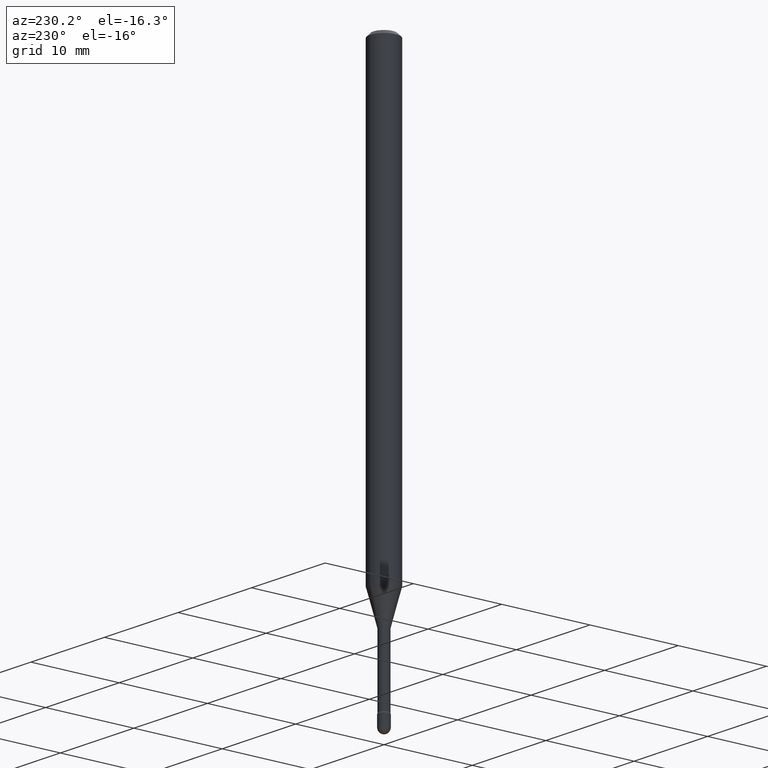
[diagram: clean part render]
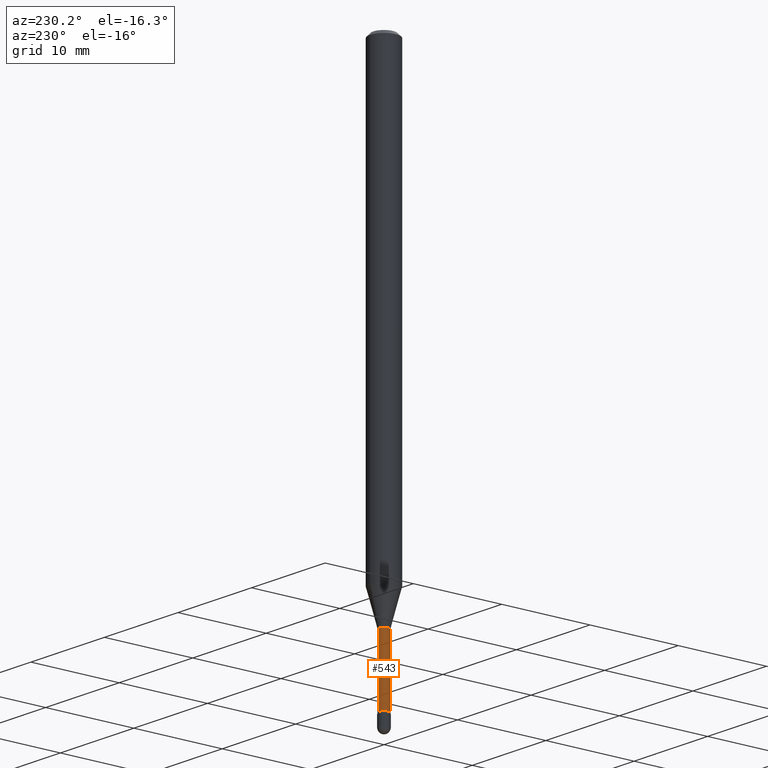
[diagram: same view with one face highlighted and labeled with its STEP entity id]
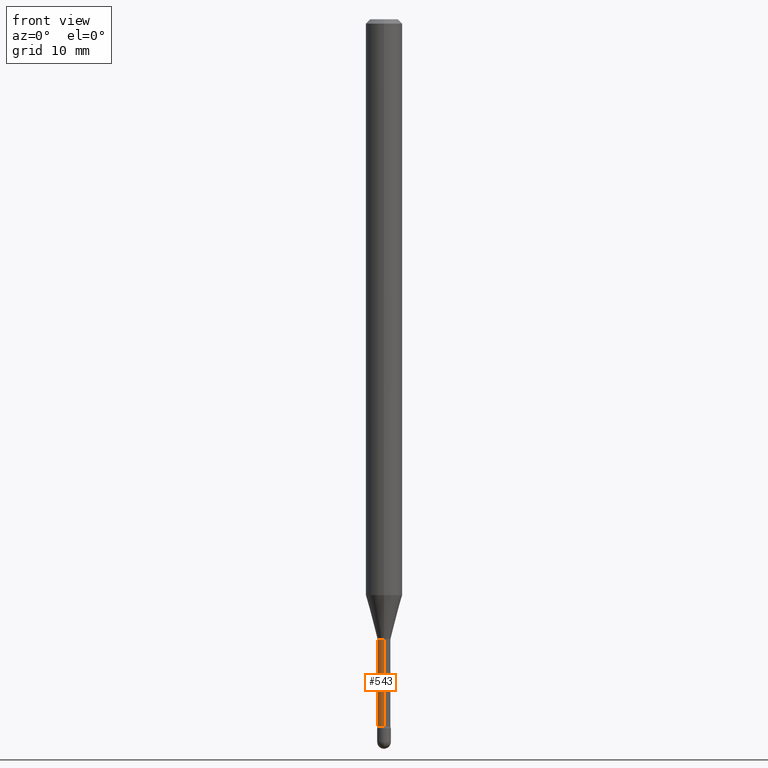
[diagram: same view with one face highlighted and labeled with its STEP entity id]
A machine part, auxiliary view. The second image highlights one B-rep face of the part: STEP entity #543.
A second angle (front view) of the same face is appended — the face is thin or edge-on in the first view.
In plain terms, the highlighted cylindrical surface (edge-blend (fillet) strip) has radius 0.5613 mm, axis along (-0, 0, 1).
Its self-contained STEP definition (entity closure, byte-faithful):
#8 = ORIENTED_EDGE ( 'NONE', *, *, #559, .T. ) ;
#20 = AXIS2_PLACEMENT_3D ( 'NONE', #526, #482, #269 ) ;
#23 = CARTESIAN_POINT ( 'NONE',  ( 1.620037437533623579E-16, 0.02209999999999160900, -2.422672283192177645 ) ) ;
#31 = LINE ( 'NONE', #514, #152 ) ;
#37 = VECTOR ( 'NONE', #305, 39.37007874015748143 ) ;
#54 = CARTESIAN_POINT ( 'NONE',  ( -1.543234751768077413E-16, -0.02210000000000852949, -2.422672283192177645 ) ) ;
#79 = FACE_OUTER_BOUND ( 'NONE', #96, .T. ) ;
#80 = CYLINDRICAL_SURFACE ( 'NONE', #154, 0.02210000000000003975 ) ;
#96 = EDGE_LOOP ( 'NONE', ( #324, #8, #123, #147 ) ) ;
#123 = ORIENTED_EDGE ( 'NONE', *, *, #176, .T. ) ;
#127 = DIRECTION ( 'NONE',  ( -2.445456806742389886E-29, 3.491498522728124281E-15, 1.000000000000000000 ) ) ;
#147 = ORIENTED_EDGE ( 'NONE', *, *, #348, .F. ) ;
#152 = VECTOR ( 'NONE', #127, 39.37007874015748143 ) ;
#154 = AXIS2_PLACEMENT_3D ( 'NONE', #257, #218, #168 ) ;
#156 = EDGE_CURVE ( 'NONE', #432, #393, #167, .T. ) ;
#167 = LINE ( 'NONE', #510, #37 ) ;
#168 = DIRECTION ( 'NONE',  ( -6.982962677686265922E-15, -1.000000000000000000, 3.491498522728123098E-15 ) ) ;
#176 = EDGE_CURVE ( 'NONE', #380, #289, #31, .T. ) ;
#186 = CARTESIAN_POINT ( 'NONE',  ( -1.543234751768145452E-16, -0.02210000000000743314, -2.125974787463811300 ) ) ;
#218 = DIRECTION ( 'NONE',  ( -2.445456806742390166E-29, 3.491498522728124281E-15, 1.000000000000000000 ) ) ;
#223 = AXIS2_PLACEMENT_3D ( 'NONE', #349, #481, #365 ) ;
#245 = CIRCLE ( 'NONE', #223, 0.02210000000000000853 ) ;
#257 = CARTESIAN_POINT ( 'NONE',  ( -1.169113584055446105E-44, 1.669184350826100908E-30, 4.780733988912460139E-16 ) ) ;
#259 = CARTESIAN_POINT ( 'NONE',  ( 1.570299446030415881E-16, 0.02209999999999258738, -2.125974787463811300 ) ) ;
#269 = DIRECTION ( 'NONE',  ( -6.982962677686265133E-15, -1.000000000000000000, 0.000000000000000000 ) ) ;
#289 = VERTEX_POINT ( 'NONE', #186 ) ;
#305 = DIRECTION ( 'NONE',  ( -2.445456806742389886E-29, 3.491498522728124281E-15, 1.000000000000000000 ) ) ;
#324 = ORIENTED_EDGE ( 'NONE', *, *, #156, .F. ) ;
#348 = EDGE_CURVE ( 'NONE', #393, #289, #245, .T. ) ;
#349 = CARTESIAN_POINT ( 'NONE',  ( 5.198979514966082173E-29, -7.422837829787135481E-15, -2.125974787463811300 ) ) ;
#365 = DIRECTION ( 'NONE',  ( -6.982962677686265922E-15, -1.000000000000000000, 0.000000000000000000 ) ) ;
#380 = VERTEX_POINT ( 'NONE', #54 ) ;
#393 = VERTEX_POINT ( 'NONE', #259 ) ;
#432 = VERTEX_POINT ( 'NONE', #23 ) ;
#436 = CIRCLE ( 'NONE', #20, 0.02210000000000007098 ) ;
#481 = DIRECTION ( 'NONE',  ( -2.445456806742390166E-29, 3.491498522728124281E-15, 1.000000000000000000 ) ) ;
#482 = DIRECTION ( 'NONE',  ( -2.445456806742390166E-29, 3.491498522728124281E-15, 1.000000000000000000 ) ) ;
#510 = CARTESIAN_POINT ( 'NONE',  ( 1.570299446029823989E-16, 0.02210000000000003975, 4.009112815389543820E-16 ) ) ;
#514 = CARTESIAN_POINT ( 'NONE',  ( -1.543234751768667580E-16, -0.02210000000000003975, 5.552355162435376952E-16 ) ) ;
#526 = CARTESIAN_POINT ( 'NONE',  ( 5.924540425438438156E-29, -8.458756697819860632E-15, -2.422672283192177645 ) ) ;
#543 = ADVANCED_FACE ( 'NONE', ( #79 ), #80, .T. ) ;
#559 = EDGE_CURVE ( 'NONE', #432, #380, #436, .T. ) ;